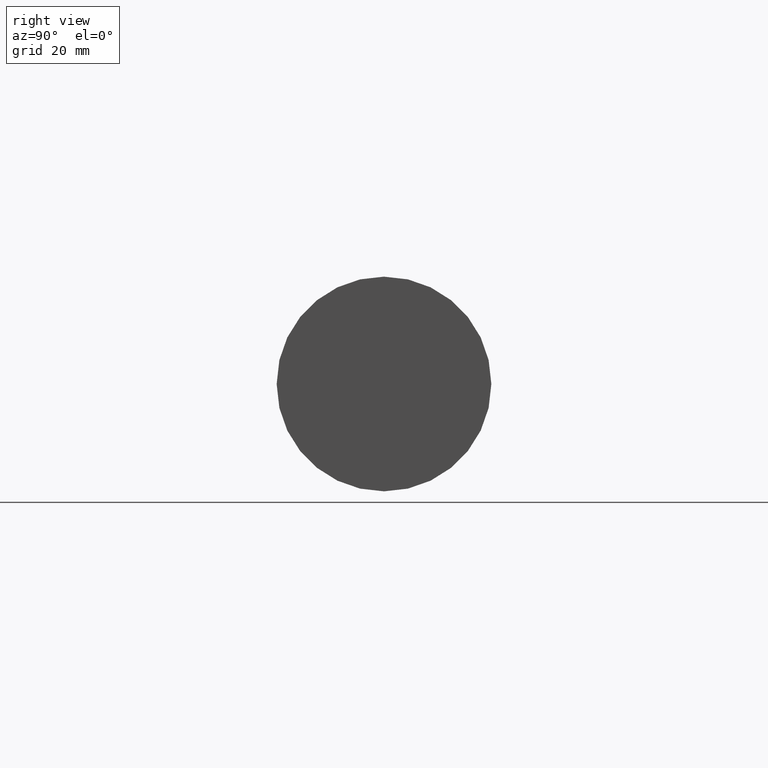
[diagram: clean part render]
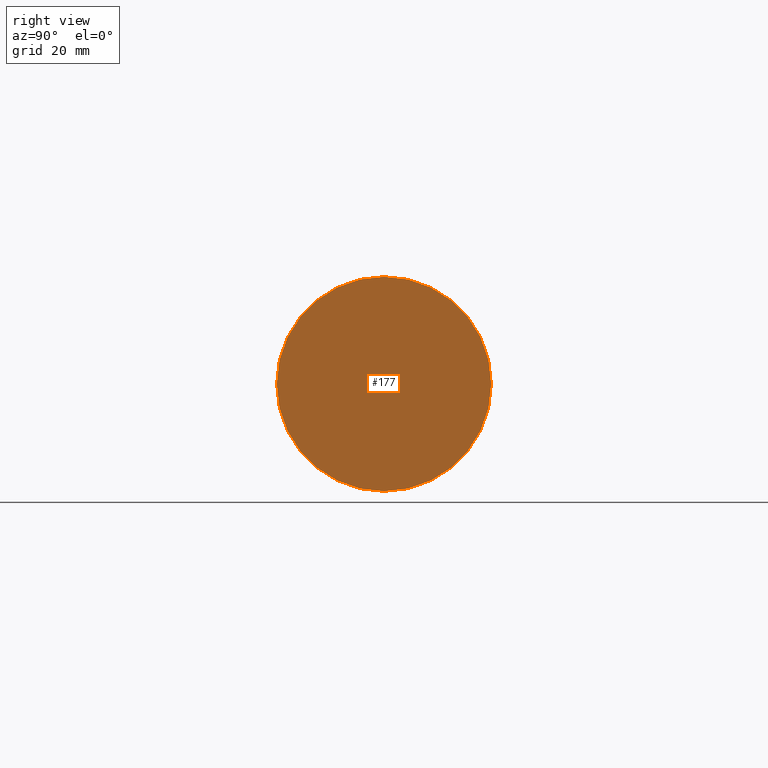
[diagram: same view with one face highlighted and labeled with its STEP entity id]
A machine part, right view. The second image highlights one B-rep face of the part: STEP entity #177.
In plain terms, the highlighted planar face has unit normal (-1, 0, 0).
Its self-contained STEP definition (entity closure, byte-faithful):
#8 = CARTESIAN_POINT ( 'NONE',  ( 124.9999998724999841, 3.061616994745535943E-15, -24.99999997449999967 ) ) ;
#16 = DIRECTION ( 'NONE',  ( 0.000000000000000000, 0.000000000000000000, 1.000000000000000000 ) ) ;
#33 = FACE_OUTER_BOUND ( 'NONE', #39, .T. ) ;
#39 = EDGE_LOOP ( 'NONE', ( #81, #153 ) ) ;
#45 = DIRECTION ( 'NONE',  ( 0.000000000000000000, 0.000000000000000000, 1.000000000000000000 ) ) ;
#51 = CIRCLE ( 'NONE', #211, 24.99999997449999967 ) ;
#66 = AXIS2_PLACEMENT_3D ( 'NONE', #107, #189, #232 ) ;
#78 = CARTESIAN_POINT ( 'NONE',  ( 124.9999998724999841, 0.000000000000000000, 24.99999997449999967 ) ) ;
#81 = ORIENTED_EDGE ( 'NONE', *, *, #239, .F. ) ;
#91 = CIRCLE ( 'NONE', #247, 24.99999997449999967 ) ;
#92 = VERTEX_POINT ( 'NONE', #8 ) ;
#107 = CARTESIAN_POINT ( 'NONE',  ( 124.9999998724999841, 0.000000000000000000, 0.000000000000000000 ) ) ;
#108 = EDGE_CURVE ( 'NONE', #92, #213, #91, .T. ) ;
#151 = CARTESIAN_POINT ( 'NONE',  ( 124.9999998724999841, 0.000000000000000000, 0.000000000000000000 ) ) ;
#153 = ORIENTED_EDGE ( 'NONE', *, *, #108, .F. ) ;
#177 = ADVANCED_FACE ( 'NONE', ( #33 ), #212, .F. ) ;
#189 = DIRECTION ( 'NONE',  ( -1.000000000000000000, 0.000000000000000000, 0.000000000000000000 ) ) ;
#206 = DIRECTION ( 'NONE',  ( -1.000000000000000000, 0.000000000000000000, 0.000000000000000000 ) ) ;
#211 = AXIS2_PLACEMENT_3D ( 'NONE', #151, #206, #16 ) ;
#212 = PLANE ( 'NONE',  #66 ) ;
#213 = VERTEX_POINT ( 'NONE', #78 ) ;
#218 = DIRECTION ( 'NONE',  ( -1.000000000000000000, 0.000000000000000000, 0.000000000000000000 ) ) ;
#232 = DIRECTION ( 'NONE',  ( 0.000000000000000000, 0.000000000000000000, 1.000000000000000000 ) ) ;
#239 = EDGE_CURVE ( 'NONE', #213, #92, #51, .T. ) ;
#246 = CARTESIAN_POINT ( 'NONE',  ( 124.9999998724999841, 0.000000000000000000, 0.000000000000000000 ) ) ;
#247 = AXIS2_PLACEMENT_3D ( 'NONE', #246, #218, #45 ) ;